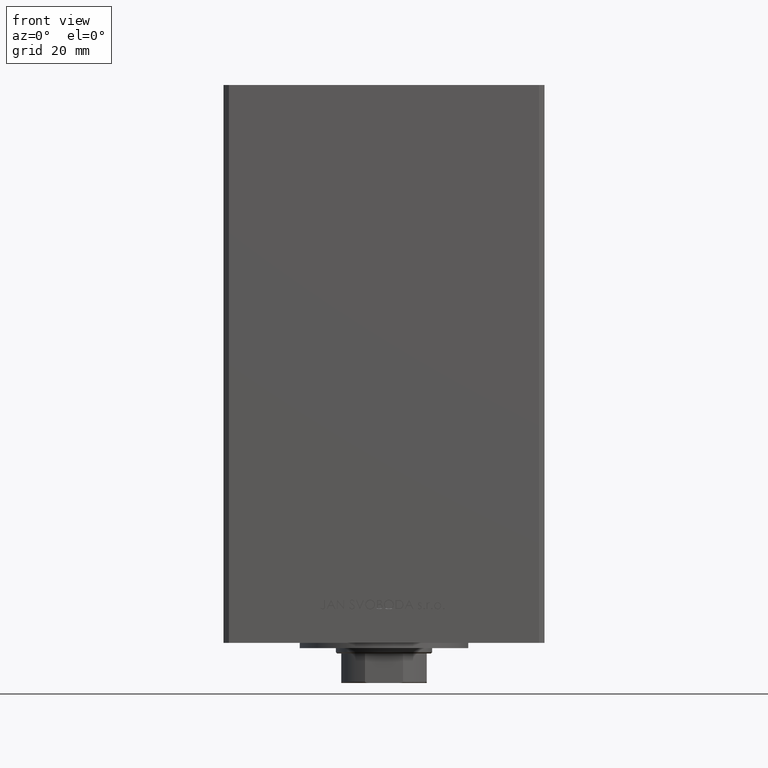
[diagram: clean part render]
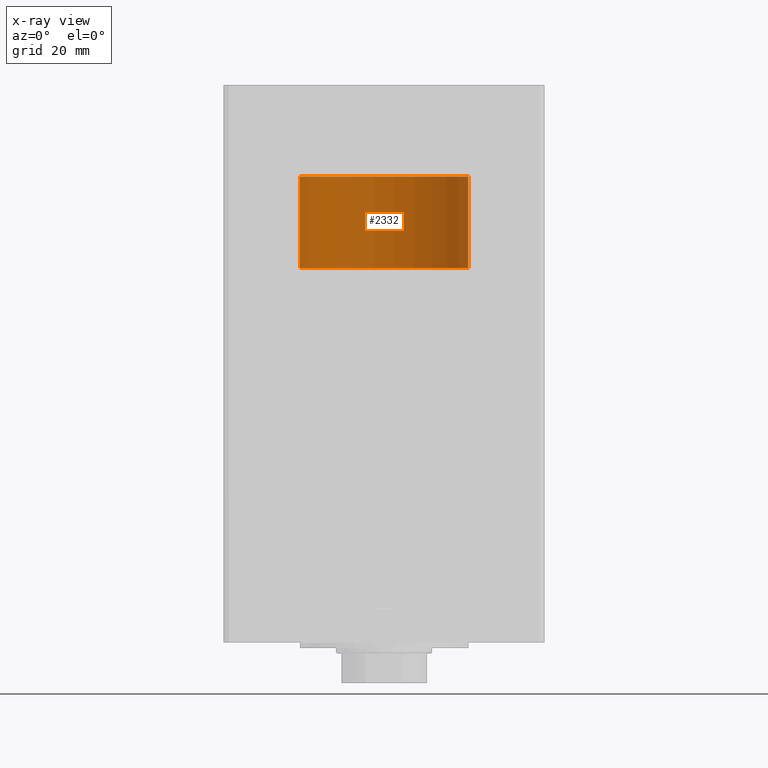
[diagram: x-ray — body ghosted, one internal face saturated and labeled with its STEP entity id]
A machine part, front view, then the same camera in x-ray: the body is ghosted and one INTERNAL B-rep face — a face not visible from any outside direction — is saturated and labeled: STEP entity #2332.
In plain terms, the highlighted cylindrical surface (partial cylindrical patch) has radius 31.5 mm, axis along (0, -0, 1).
Its self-contained STEP definition (entity closure, byte-faithful):
#2332 = ADVANCED_FACE ( 'NONE', ( #11915 ), #13307, .T. ) ;
#3976 = LINE ( 'NONE', #11923, #11397 ) ;
#4416 = CARTESIAN_POINT ( 'NONE',  ( 31.50000000000000000, 3.857637417314162689E-15, 0.000000000000000000 ) ) ;
#4760 = VERTEX_POINT ( 'NONE', #25502 ) ;
#6589 = VERTEX_POINT ( 'NONE', #41315 ) ;
#7694 = AXIS2_PLACEMENT_3D ( 'NONE', #28150, #24184, #32134 ) ;
#10062 = DIRECTION ( 'NONE',  ( 0.000000000000000000, 0.000000000000000000, 1.000000000000000000 ) ) ;
#11397 = VECTOR ( 'NONE', #27084, 1000.000000000000000 ) ;
#11915 = FACE_OUTER_BOUND ( 'NONE', #43725, .T. ) ;
#11923 = CARTESIAN_POINT ( 'NONE',  ( 31.50000000000000000, 3.857637417314162689E-15, 34.25000000000000000 ) ) ;
#13307 = CYLINDRICAL_SURFACE ( 'NONE', #29751, 31.50000000000000000 ) ;
#15635 = CARTESIAN_POINT ( 'NONE',  ( 0.000000000000000000, 0.000000000000000000, 34.25000000000000000 ) ) ;
#19099 = DIRECTION ( 'NONE',  ( -0.000000000000000000, -0.000000000000000000, -1.000000000000000000 ) ) ;
#20299 = ORIENTED_EDGE ( 'NONE', *, *, #24831, .T. ) ;
#21339 = CIRCLE ( 'NONE', #40388, 31.50000000000000000 ) ;
#21611 = ORIENTED_EDGE ( 'NONE', *, *, #46779, .F. ) ;
#22812 = ORIENTED_EDGE ( 'NONE', *, *, #40828, .F. ) ;
#24184 = DIRECTION ( 'NONE',  ( 0.000000000000000000, 0.000000000000000000, 1.000000000000000000 ) ) ;
#24741 = DIRECTION ( 'NONE',  ( 1.000000000000000000, 0.000000000000000000, 0.000000000000000000 ) ) ;
#24831 = EDGE_CURVE ( 'NONE', #4760, #32583, #3976, .T. ) ;
#25384 = ORIENTED_EDGE ( 'NONE', *, *, #36620, .T. ) ;
#25502 = CARTESIAN_POINT ( 'NONE',  ( 31.50000000000000000, 3.857637417314162689E-15, 34.25000000000000000 ) ) ;
#27084 = DIRECTION ( 'NONE',  ( -0.000000000000000000, -0.000000000000000000, -1.000000000000000000 ) ) ;
#28150 = CARTESIAN_POINT ( 'NONE',  ( 0.000000000000000000, 0.000000000000000000, 0.000000000000000000 ) ) ;
#28518 = VECTOR ( 'NONE', #19099, 1000.000000000000000 ) ;
#29751 = AXIS2_PLACEMENT_3D ( 'NONE', #15635, #42484, #30571 ) ;
#30571 = DIRECTION ( 'NONE',  ( -1.000000000000000000, 0.000000000000000000, 0.000000000000000000 ) ) ;
#32134 = DIRECTION ( 'NONE',  ( 1.000000000000000000, 0.000000000000000000, 0.000000000000000000 ) ) ;
#32583 = VERTEX_POINT ( 'NONE', #4416 ) ;
#33910 = CIRCLE ( 'NONE', #7694, 31.50000000000000000 ) ;
#34038 = CARTESIAN_POINT ( 'NONE',  ( -31.50000000000000000, 0.000000000000000000, 34.25000000000000000 ) ) ;
#36620 = EDGE_CURVE ( 'NONE', #32583, #48492, #33910, .T. ) ;
#40388 = AXIS2_PLACEMENT_3D ( 'NONE', #40398, #10062, #24741 ) ;
#40398 = CARTESIAN_POINT ( 'NONE',  ( 0.000000000000000000, 0.000000000000000000, 34.25000000000000000 ) ) ;
#40828 = EDGE_CURVE ( 'NONE', #4760, #6589, #21339, .T. ) ;
#41315 = CARTESIAN_POINT ( 'NONE',  ( -31.50000000000000000, 0.000000000000000000, 34.25000000000000000 ) ) ;
#41727 = LINE ( 'NONE', #34038, #28518 ) ;
#42349 = CARTESIAN_POINT ( 'NONE',  ( -31.50000000000000000, 0.000000000000000000, 0.000000000000000000 ) ) ;
#42484 = DIRECTION ( 'NONE',  ( -0.000000000000000000, -0.000000000000000000, -1.000000000000000000 ) ) ;
#43725 = EDGE_LOOP ( 'NONE', ( #22812, #20299, #25384, #21611 ) ) ;
#46779 = EDGE_CURVE ( 'NONE', #6589, #48492, #41727, .T. ) ;
#48492 = VERTEX_POINT ( 'NONE', #42349 ) ;